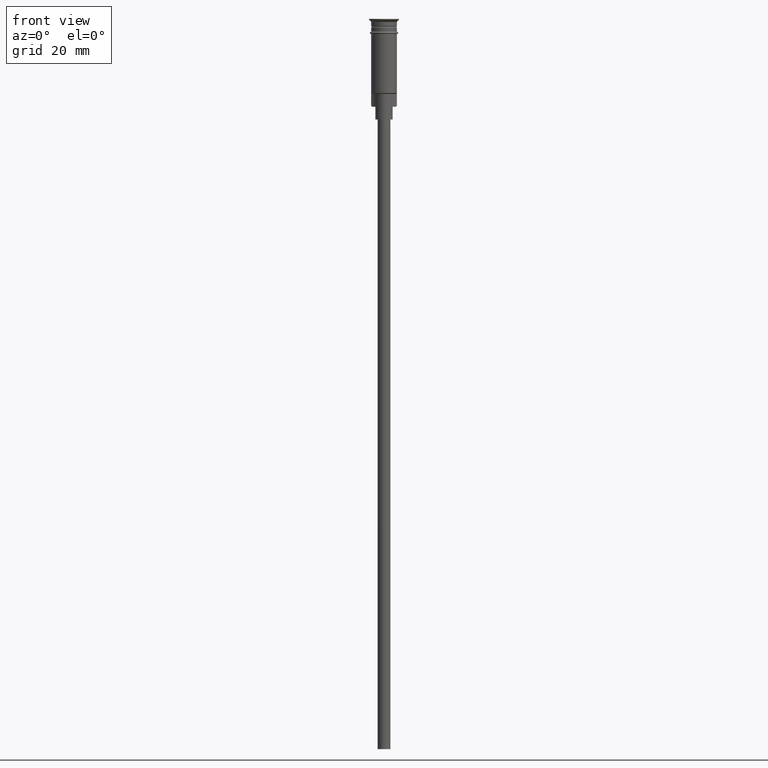
[diagram: clean part render]
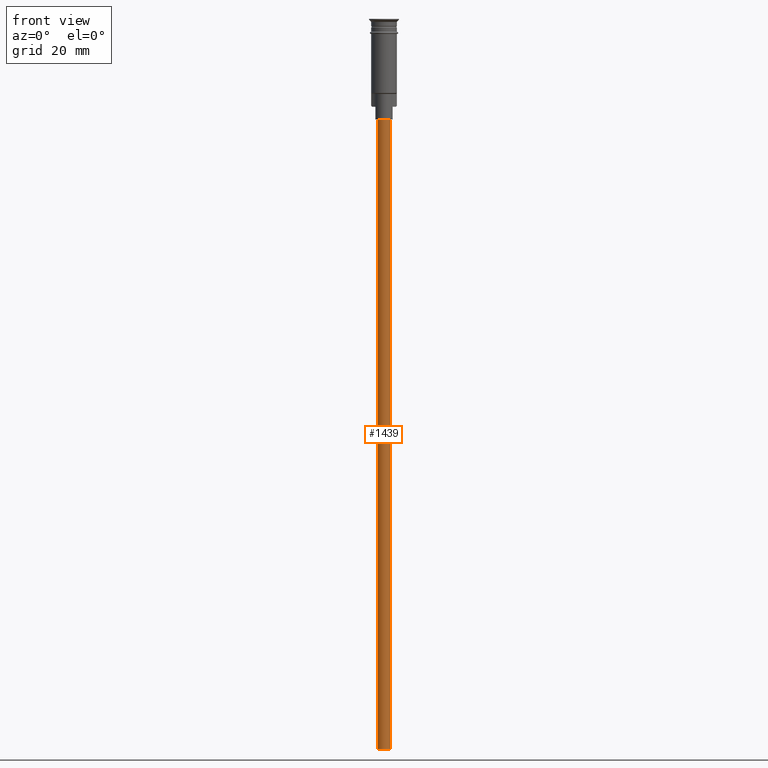
[diagram: same view with one face highlighted and labeled with its STEP entity id]
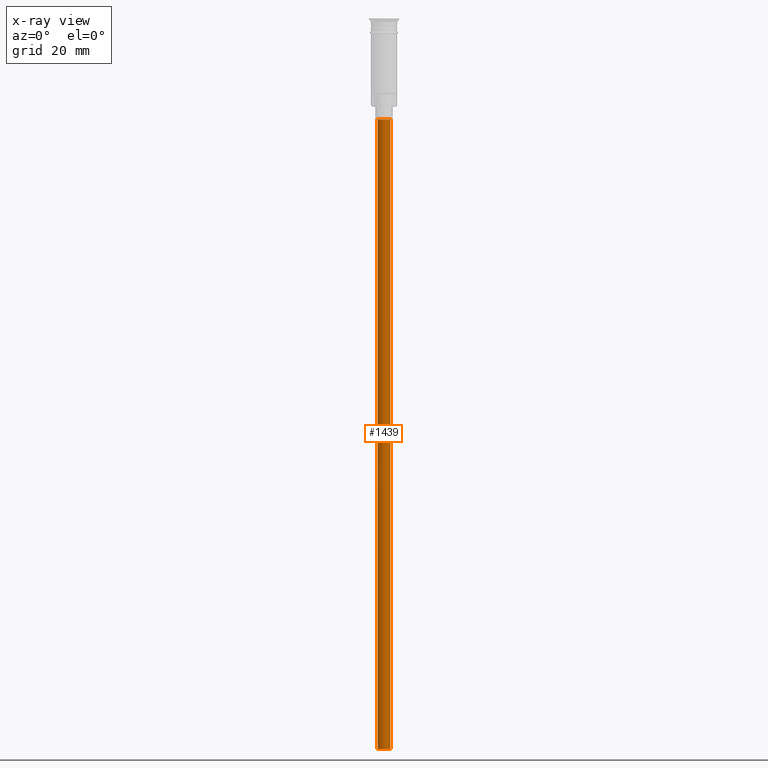
[diagram: x-ray of the same camera — body ghosted, the highlighted face saturated]
A machine part, front view. The second image highlights one B-rep face of the part: STEP entity #1439.
The next image is the same camera in x-ray: the body ghosted, the highlighted face saturated — about 0% of this face is hidden behind the body in this view.
In plain terms, the highlighted cylindrical surface (edge-blend (fillet) strip) has radius 1.5 mm, axis along (-0, -0, 1).
Its self-contained STEP definition (entity closure, byte-faithful):
#17 = EDGE_LOOP ( 'NONE', ( #1432, #343, #630, #1590 ) ) ;
#156 = EDGE_CURVE ( 'NONE', #863, #459, #872, .T. ) ;
#167 = VERTEX_POINT ( 'NONE', #606 ) ;
#173 = AXIS2_PLACEMENT_3D ( 'NONE', #660, #1276, #1168 ) ;
#243 = CYLINDRICAL_SURFACE ( 'NONE', #824, 1.500000000000000222 ) ;
#265 = CARTESIAN_POINT ( 'NONE',  ( 1.500000000000000222, 0.000000000000000000, -170.4999999999999716 ) ) ;
#343 = ORIENTED_EDGE ( 'NONE', *, *, #911, .F. ) ;
#349 = DIRECTION ( 'NONE',  ( 0.000000000000000000, 0.000000000000000000, -1.000000000000000000 ) ) ;
#380 = CIRCLE ( 'NONE', #173, 1.500000000000000222 ) ;
#408 = CARTESIAN_POINT ( 'NONE',  ( 1.500000000000000222, 0.000000000000000000, -23.50000000000000000 ) ) ;
#459 = VERTEX_POINT ( 'NONE', #1193 ) ;
#488 = VECTOR ( 'NONE', #1194, 1000.000000000000000 ) ;
#512 = FACE_OUTER_BOUND ( 'NONE', #17, .T. ) ;
#571 = CARTESIAN_POINT ( 'NONE',  ( 0.000000000000000000, 0.000000000000000000, -23.50000000000000000 ) ) ;
#589 = VECTOR ( 'NONE', #753, 1000.000000000000000 ) ;
#606 = CARTESIAN_POINT ( 'NONE',  ( -1.500000000000000222, 1.836970198721030181E-16, -170.4999999999999716 ) ) ;
#630 = ORIENTED_EDGE ( 'NONE', *, *, #1154, .T. ) ;
#660 = CARTESIAN_POINT ( 'NONE',  ( 0.000000000000000000, 0.000000000000000000, -170.4999999999999716 ) ) ;
#682 = CARTESIAN_POINT ( 'NONE',  ( -1.500000000000000222, 1.836970198721030181E-16, -170.4999999999999716 ) ) ;
#738 = AXIS2_PLACEMENT_3D ( 'NONE', #571, #349, #841 ) ;
#753 = DIRECTION ( 'NONE',  ( -0.000000000000000000, -0.000000000000000000, 1.000000000000000000 ) ) ;
#789 = VERTEX_POINT ( 'NONE', #885 ) ;
#824 = AXIS2_PLACEMENT_3D ( 'NONE', #1388, #870, #999 ) ;
#841 = DIRECTION ( 'NONE',  ( -1.000000000000000000, 0.000000000000000000, 0.000000000000000000 ) ) ;
#863 = VERTEX_POINT ( 'NONE', #408 ) ;
#870 = DIRECTION ( 'NONE',  ( -0.000000000000000000, -0.000000000000000000, 1.000000000000000000 ) ) ;
#872 = CIRCLE ( 'NONE', #738, 1.500000000000000222 ) ;
#885 = CARTESIAN_POINT ( 'NONE',  ( 1.500000000000000222, 0.000000000000000000, -170.4999999999999716 ) ) ;
#911 = EDGE_CURVE ( 'NONE', #789, #167, #380, .T. ) ;
#927 = LINE ( 'NONE', #682, #488 ) ;
#999 = DIRECTION ( 'NONE',  ( 1.000000000000000000, 0.000000000000000000, 0.000000000000000000 ) ) ;
#1027 = LINE ( 'NONE', #265, #589 ) ;
#1154 = EDGE_CURVE ( 'NONE', #789, #863, #1027, .T. ) ;
#1168 = DIRECTION ( 'NONE',  ( -1.000000000000000000, 0.000000000000000000, 0.000000000000000000 ) ) ;
#1193 = CARTESIAN_POINT ( 'NONE',  ( -1.500000000000000222, 1.836970198721030181E-16, -23.50000000000000000 ) ) ;
#1194 = DIRECTION ( 'NONE',  ( -0.000000000000000000, -0.000000000000000000, 1.000000000000000000 ) ) ;
#1276 = DIRECTION ( 'NONE',  ( 0.000000000000000000, 0.000000000000000000, -1.000000000000000000 ) ) ;
#1388 = CARTESIAN_POINT ( 'NONE',  ( 0.000000000000000000, 0.000000000000000000, -170.4999999999999716 ) ) ;
#1390 = EDGE_CURVE ( 'NONE', #167, #459, #927, .T. ) ;
#1432 = ORIENTED_EDGE ( 'NONE', *, *, #1390, .F. ) ;
#1439 = ADVANCED_FACE ( 'NONE', ( #512 ), #243, .T. ) ;
#1590 = ORIENTED_EDGE ( 'NONE', *, *, #156, .T. ) ;